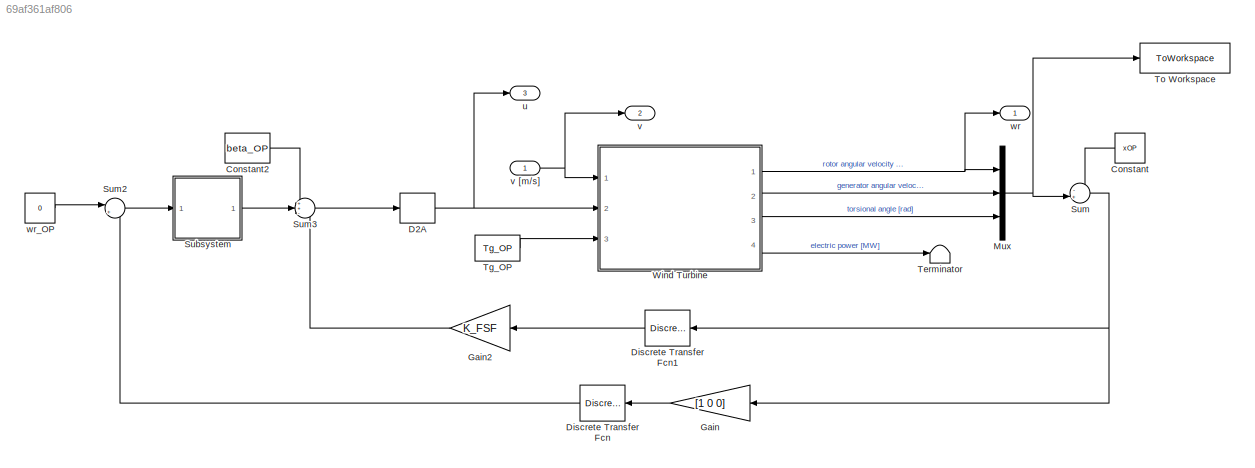
MODEL slx_69af361af806
KIND model
CONFIG AbsTol = auto
CONFIG EnableMultiTasking = off
CONFIG FixedStep = STEP_SIZE
CONFIG MaxStep = Ts
CONFIG MinStep = auto
CONFIG RelTol = 1e-6
CONFIG SampleTimeConstraint = Unconstrained
CONFIG SolverName = ode4
CONFIG StartTime = 0.0
CONFIG StopTime = TIME_SIM
BLOCK [Constant] Constant
  NameLocation = top
  Value = xOP
BLOCK [Constant] Constant2
  SampleTime = Ts
  Value = beta_OP
BLOCK [ZeroOrderHold] D2A
  SampleTime = -1
BLOCK [DiscreteTransferFcn] Discrete Transfer Fcn
  Denominator = 1
  InputPortMap = u0
  NameLocation = top
  Ports = [1, 1]
  SampleTime = Ts
BLOCK [DiscreteTransferFcn] Discrete Transfer Fcn1
  Denominator = 1
  InputPortMap = u0
  NameLocation = top
  Ports = [1, 1]
  SampleTime = Ts
BLOCK [Gain] Gain
  Gain = [1 0 0]
  Multiplication = Matrix(K*u) (u vector)
  NameLocation = top
BLOCK [Gain] Gain2
  Gain = K_FSF
  Multiplication = Matrix(K*u) (u vector)
  NameLocation = top
BLOCK [Mux] Mux
  DisplayOption = bar
  Inputs = 3
  Ports = [3, 1]
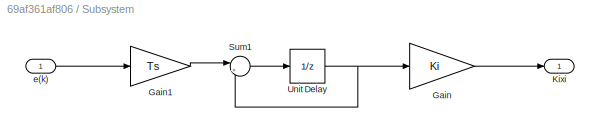
BLOCK [SubSystem] Subsystem
  Ports = [1, 1]
  RequestExecContextInheritance = off
BLOCK [Gain] Subsystem/Gain
  Gain = Ki
  Multiplication = Matrix(K*u) (u vector)
BLOCK [Gain] Subsystem/Gain1
  Gain = Ts
  Multiplication = Matrix(K*u) (u vector)
BLOCK [Outport] Subsystem/Kixi
BLOCK [Sum] Subsystem/Sum1
  Inputs = |++
  Ports = [2, 1]
BLOCK [UnitDelay] Subsystem/Unit Delay
  HasFrameUpgradeWarning = on
  SampleTime = -1
BLOCK [Inport] Subsystem/e(k)
BLOCK [Sum] Sum
  Inputs = -+|
  Ports = [2, 1]
BLOCK [Sum] Sum2
  Inputs = |+-
  Ports = [2, 1]
BLOCK [Sum] Sum3
  Inputs = ++-
  Ports = [3, 1]
BLOCK [Terminator] Terminator
BLOCK [Constant] Tg_OP
  Value = Tg_OP
BLOCK [ToWorkspace] To Workspace
  FixptAsFi = on
  MaxDataPoints = inf
  Ports = [1]
  SampleTime = -1
  SaveFormat = Structure With Time
  VariableName = states
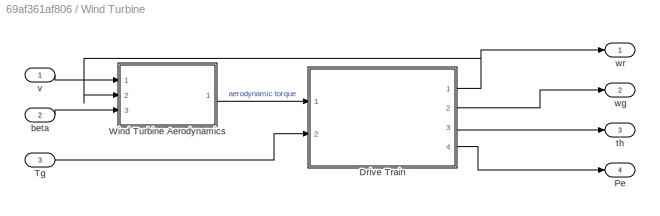
BLOCK [SubSystem] Wind Turbine
  Ports = [3, 4]
  RequestExecContextInheritance = off
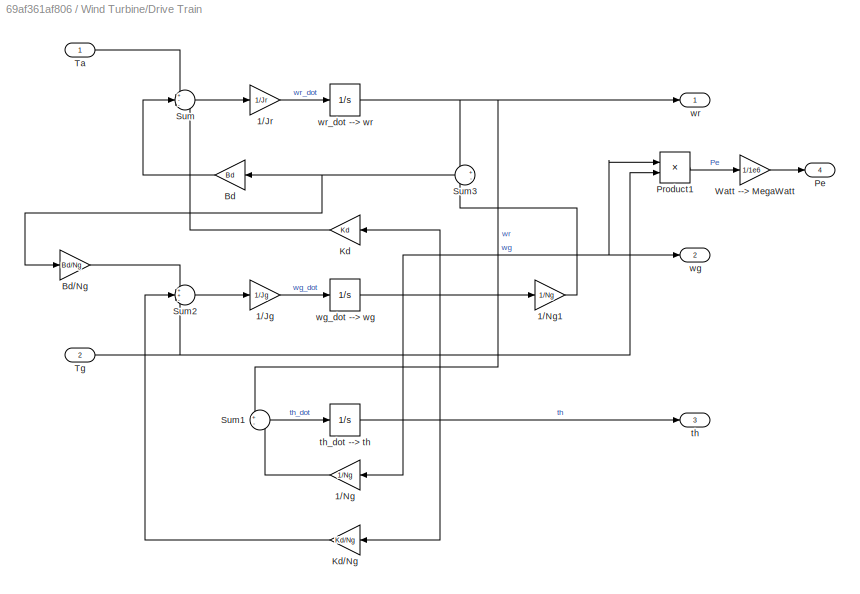
BLOCK [SubSystem] Wind Turbine/Drive Train
  Ports = [2, 4]
  RequestExecContextInheritance = off
BLOCK [Gain] Wind Turbine/Drive Train/1//Jg
  Gain = 1/Jg
BLOCK [Gain] Wind Turbine/Drive Train/1//Jr
  Gain = 1/Jr
BLOCK [Gain] Wind Turbine/Drive Train/1//Ng
  Gain = 1/Ng
BLOCK [Gain] Wind Turbine/Drive Train/1//Ng1
  Gain = 1/Ng
BLOCK [Gain] Wind Turbine/Drive Train/Bd
  Gain = Bd
BLOCK [Gain] Wind Turbine/Drive Train/Bd//Ng
  Gain = Bd/Ng
BLOCK [Gain] Wind Turbine/Drive Train/Kd
  Gain = Kd
BLOCK [Gain] Wind Turbine/Drive Train/Kd//Ng
  Gain = Kd/Ng
BLOCK [Outport] Wind Turbine/Drive Train/Pe
  Port = 4
  VectorParamsAs1DForOutWhenUnconnected = off
BLOCK [Product] Wind Turbine/Drive Train/Product1
  Ports = [2, 1]
BLOCK [Sum] Wind Turbine/Drive Train/Sum
  Inputs = +--
  Ports = [3, 1]
BLOCK [Sum] Wind Turbine/Drive Train/Sum1
  Inputs = +-
  Ports = [2, 1]
BLOCK [Sum] Wind Turbine/Drive Train/Sum2
  Inputs = ++-
  Ports = [3, 1]
BLOCK [Sum] Wind Turbine/Drive Train/Sum3
  Inputs = +-
  Ports = [2, 1]
BLOCK [Inport] Wind Turbine/Drive Train/Ta
BLOCK [Inport] Wind Turbine/Drive Train/Tg
  Port = 2
BLOCK [Gain] Wind Turbine/Drive Train/Watt --> MegaWatt
  Gain = 1/1e6
BLOCK [Outport] Wind Turbine/Drive Train/th
  Port = 3
  VectorParamsAs1DForOutWhenUnconnected = off
BLOCK [Integrator] Wind Turbine/Drive Train/th_dot --> th
  InitialCondition = xOP(3)
  LowerSaturationLimit = 0
  Ports = [1, 1]
  Priority = 3
BLOCK [Outport] Wind Turbine/Drive Train/wg
  Port = 2
  VectorParamsAs1DForOutWhenUnconnected = off
BLOCK [Integrator] Wind Turbine/Drive Train/wg_dot --> wg
  InitialCondition = xOP(2)
  LowerSaturationLimit = 0
  Ports = [1, 1]
  Priority = 2
BLOCK [Outport] Wind Turbine/Drive Train/wr
  VectorParamsAs1DForOutWhenUnconnected = off
BLOCK [Integrator] Wind Turbine/Drive Train/wr_dot --> wr
  InitialCondition = xOP(1)
  LowerSaturationLimit = 0
  Ports = [1, 1]
  Priority = 1
BLOCK [Outport] Wind Turbine/Pe
  Port = 4
  VectorParamsAs1DForOutWhenUnconnected = off
BLOCK [Inport] Wind Turbine/Tg
  Port = 3
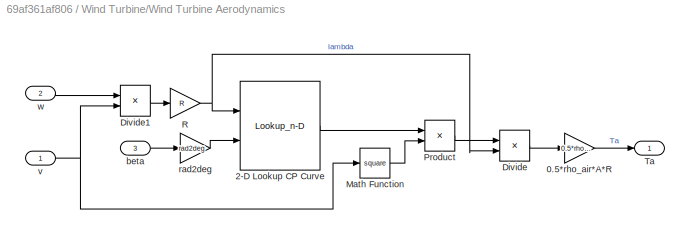
BLOCK [SubSystem] Wind Turbine/Wind Turbine Aerodynamics
  Ports = [3, 1]
  RequestExecContextInheritance = off
BLOCK [Gain] Wind Turbine/Wind Turbine Aerodynamics/0.5*rho_air*A*R
  Gain = 0.5*rho_air*Area*R
BLOCK [Lookup_n-D] Wind Turbine/Wind Turbine Aerodynamics/2-D Lookup CP Curve
  BreakpointsForDimension1 = Lambda_legend
  BreakpointsForDimension2 = Pitch_legend
  BreakpointsForDimension3 = CP0'
  DiagnosticForOutOfRangeInput = Warning
  InputPortMap = u0,u1
  Ports = [2, 1]
  RndMeth = Simplest
  Table = CP
BLOCK [Product] Wind Turbine/Wind Turbine Aerodynamics/Divide
  Inputs = */
  Ports = [2, 1]
BLOCK [Product] Wind Turbine/Wind Turbine Aerodynamics/Divide1
  Inputs = */
  Ports = [2, 1]
BLOCK [Math] Wind Turbine/Wind Turbine Aerodynamics/Math Function
  Operator = square
  Ports = [1, 1]
  SignedPower = on
BLOCK [Product] Wind Turbine/Wind Turbine Aerodynamics/Product
  Ports = [2, 1]
BLOCK [Gain] Wind Turbine/Wind Turbine Aerodynamics/R
  Gain = R
BLOCK [Outport] Wind Turbine/Wind Turbine Aerodynamics/Ta
  VectorParamsAs1DForOutWhenUnconnected = off
BLOCK [Inport] Wind Turbine/Wind Turbine Aerodynamics/beta
  Port = 3
BLOCK [Gain] Wind Turbine/Wind Turbine Aerodynamics/rad2deg
  Gain = rad2deg
BLOCK [Inport] Wind Turbine/Wind Turbine Aerodynamics/v
BLOCK [Inport] Wind Turbine/Wind Turbine Aerodynamics/w
  Port = 2
BLOCK [Inport] Wind Turbine/beta
  Port = 2
BLOCK [Outport] Wind Turbine/th
  Port = 3
  VectorParamsAs1DForOutWhenUnconnected = off
BLOCK [Inport] Wind Turbine/v
BLOCK [Outport] Wind Turbine/wg
  Port = 2
  VectorParamsAs1DForOutWhenUnconnected = off
BLOCK [Outport] Wind Turbine/wr
  VectorParamsAs1DForOutWhenUnconnected = off
BLOCK [Outport] u
  Port = 3
BLOCK [Outport] v
  Port = 2
BLOCK [Inport] v [m//s]
BLOCK [Outport] wr
BLOCK [Constant] wr_OP
  SampleTime = Ts
  Value = 0
LINE Constant2:1 -> Sum3:1
LINE Constant:1 -> Sum:1
NET D2A:1 -> Wind Turbine:2, u:1
LINE Discrete Transfer Fcn1:1 -> Gain2:1
LINE Discrete Transfer Fcn:1 -> Sum2:2
LINE Gain2:1 -> Sum3:3
LINE Gain:1 -> Discrete Transfer Fcn:1
NET Mux:1 -> Sum:2, To Workspace:1
LINE Subsystem/Gain1:1 -> Subsystem/Sum1:1
LINE Subsystem/Gain:1 -> Subsystem/Kixi:1
LINE Subsystem/Sum1:1 -> Subsystem/Unit Delay:1
NET Subsystem/Unit Delay:1 -> Subsystem/Gain:1, Subsystem/Sum1:2
LINE Subsystem/e(k):1 -> Subsystem/Gain1:1
LINE Subsystem:1 -> Sum3:2
LINE Sum2:1 -> Subsystem:1
LINE Sum3:1 -> D2A:1
NET Sum:1 -> Discrete Transfer Fcn1:1, Gain:1
LINE Tg_OP:1 -> Wind Turbine:3
LINE Wind Turbine/Drive Train/1//Jg:1 -> Wind Turbine/Drive Train/wg_dot --> wg:1
LINE Wind Turbine/Drive Train/1//Jr:1 -> Wind Turbine/Drive Train/wr_dot --> wr:1
LINE Wind Turbine/Drive Train/1//Ng1:1 -> Wind Turbine/Drive Train/Sum3:2
LINE Wind Turbine/Drive Train/1//Ng:1 -> Wind Turbine/Drive Train/Sum1:2
LINE Wind Turbine/Drive Train/Bd//Ng:1 -> Wind Turbine/Drive Train/Sum2:1
LINE Wind Turbine/Drive Train/Bd:1 -> Wind Turbine/Drive Train/Sum:2
LINE Wind Turbine/Drive Train/Kd//Ng:1 -> Wind Turbine/Drive Train/Sum2:2
LINE Wind Turbine/Drive Train/Kd:1 -> Wind Turbine/Drive Train/Sum:3
LINE Wind Turbine/Drive Train/Product1:1 -> Wind Turbine/Drive Train/Watt --> MegaWatt:1
LINE Wind Turbine/Drive Train/Sum1:1 -> Wind Turbine/Drive Train/th_dot --> th:1
LINE Wind Turbine/Drive Train/Sum2:1 -> Wind Turbine/Drive Train/1//Jg:1
NET Wind Turbine/Drive Train/Sum3:1 -> Wind Turbine/Drive Train/Bd//Ng:1, Wind Turbine/Drive Train/Bd:1
LINE Wind Turbine/Drive Train/Sum:1 -> Wind Turbine/Drive Train/1//Jr:1
LINE Wind Turbine/Drive Train/Ta:1 -> Wind Turbine/Drive Train/Sum:1
NET Wind Turbine/Drive Train/Tg:1 -> Wind Turbine/Drive Train/Product1:2, Wind Turbine/Drive Train/Sum2:3
LINE Wind Turbine/Drive Train/Watt --> MegaWatt:1 -> Wind Turbine/Drive Train/Pe:1
NET Wind Turbine/Drive Train/th_dot --> th:1 -> Wind Turbine/Drive Train/Kd//Ng:1, Wind Turbine/Drive Train/Kd:1, Wind Turbine/Drive Train/th:1
NET Wind Turbine/Drive Train/wg_dot --> wg:1 -> Wind Turbine/Drive Train/1//Ng1:1, Wind Turbine/Drive Train/1//Ng:1, Wind Turbine/Drive Train/Product1:1, Wind Turbine/Drive Train/wg:1
NET Wind Turbine/Drive Train/wr_dot --> wr:1 -> Wind Turbine/Drive Train/Sum1:1, Wind Turbine/Drive Train/Sum3:1, Wind Turbine/Drive Train/wr:1
NET Wind Turbine/Drive Train:1 -> Wind Turbine/Wind Turbine Aerodynamics:2, Wind Turbine/wr:1
LINE Wind Turbine/Drive Train:2 -> Wind Turbine/wg:1
LINE Wind Turbine/Drive Train:3 -> Wind Turbine/th:1
LINE Wind Turbine/Drive Train:4 -> Wind Turbine/Pe:1
LINE Wind Turbine/Tg:1 -> Wind Turbine/Drive Train:2
LINE Wind Turbine/Wind Turbine Aerodynamics/0.5*rho_air*A*R:1 -> Wind Turbine/Wind Turbine Aerodynamics/Ta:1
LINE Wind Turbine/Wind Turbine Aerodynamics/2-D Lookup CP Curve:1 -> Wind Turbine/Wind Turbine Aerodynamics/Product:1
LINE Wind Turbine/Wind Turbine Aerodynamics/Divide1:1 -> Wind Turbine/Wind Turbine Aerodynamics/R:1
LINE Wind Turbine/Wind Turbine Aerodynamics/Divide:1 -> Wind Turbine/Wind Turbine Aerodynamics/0.5*rho_air*A*R:1
LINE Wind Turbine/Wind Turbine Aerodynamics/Math Function:1 -> Wind Turbine/Wind Turbine Aerodynamics/Product:2
LINE Wind Turbine/Wind Turbine Aerodynamics/Product:1 -> Wind Turbine/Wind Turbine Aerodynamics/Divide:1
NET Wind Turbine/Wind Turbine Aerodynamics/R:1 -> Wind Turbine/Wind Turbine Aerodynamics/2-D Lookup CP Curve:1, Wind Turbine/Wind Turbine Aerodynamics/Divide:2
LINE Wind Turbine/Wind Turbine Aerodynamics/beta:1 -> Wind Turbine/Wind Turbine Aerodynamics/rad2deg:1
LINE Wind Turbine/Wind Turbine Aerodynamics/rad2deg:1 -> Wind Turbine/Wind Turbine Aerodynamics/2-D Lookup CP Curve:2
NET Wind Turbine/Wind Turbine Aerodynamics/v:1 -> Wind Turbine/Wind Turbine Aerodynamics/Divide1:2, Wind Turbine/Wind Turbine Aerodynamics/Math Function:1
LINE Wind Turbine/Wind Turbine Aerodynamics/w:1 -> Wind Turbine/Wind Turbine Aerodynamics/Divide1:1
LINE Wind Turbine/Wind Turbine Aerodynamics:1 -> Wind Turbine/Drive Train:1
LINE Wind Turbine/beta:1 -> Wind Turbine/Wind Turbine Aerodynamics:3
LINE Wind Turbine/v:1 -> Wind Turbine/Wind Turbine Aerodynamics:1
NET Wind Turbine:1 -> Mux:1, wr:1
LINE Wind Turbine:2 -> Mux:2
LINE Wind Turbine:3 -> Mux:3
LINE Wind Turbine:4 -> Terminator:1
NET v [m//s]:1 -> Wind Turbine:1, v:1
LINE wr_OP:1 -> Sum2:1
note: NET lines group one-source signal fan-out (src -> all destinations, sorted); 1:1 wires keep LINE
